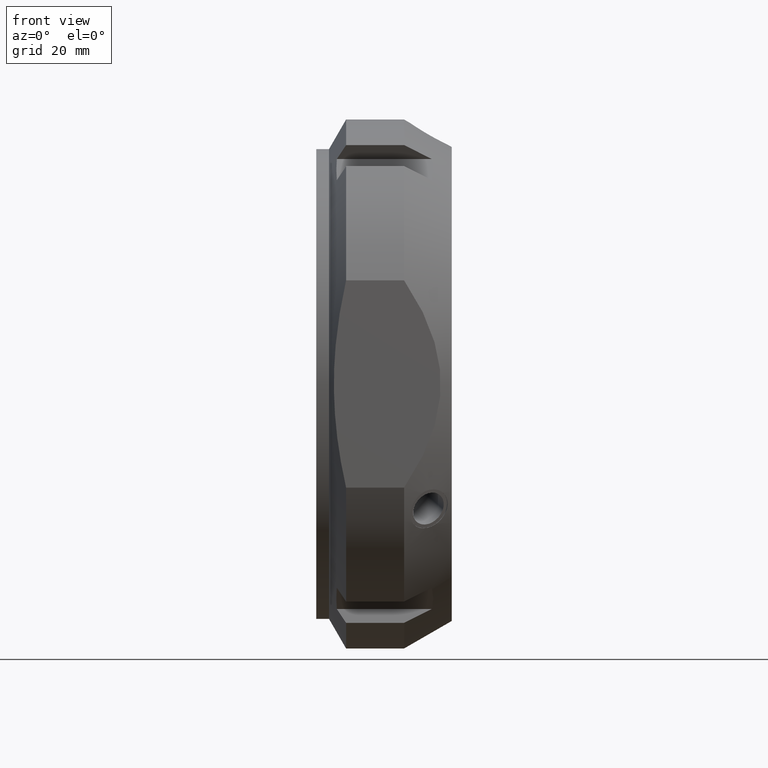
[diagram: clean part render]
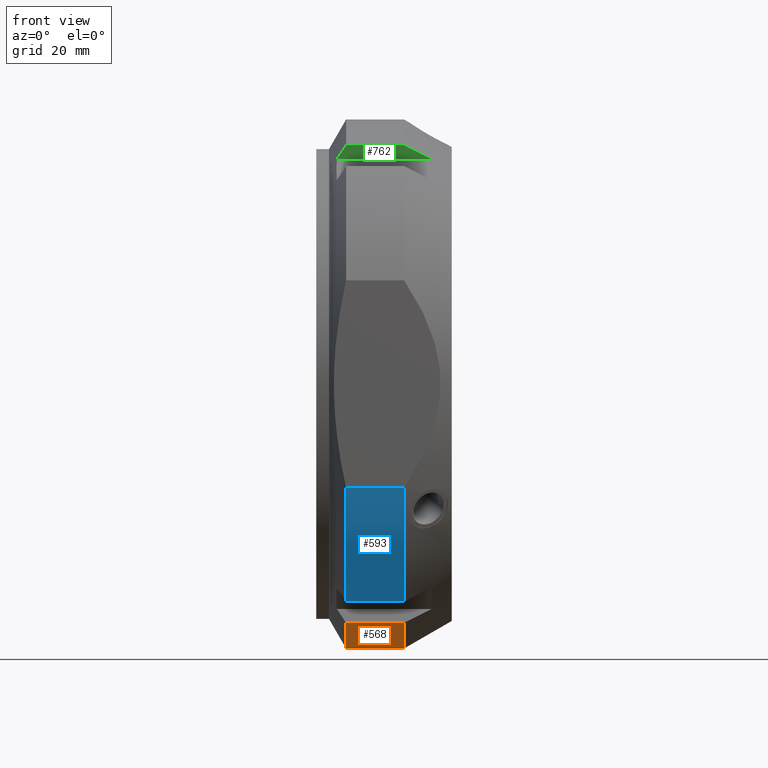
[diagram: same view with three faces highlighted in distinct colors, each labeled with its STEP entity id]
A machine part, front view with three faces highlighted in distinct colors.
Their STEP definitions:

[orange] entity #568 — the highlighted cylindrical surface (partial cylindrical patch) has radius 62.5 mm, axis along (1, 0, 0).
#127=CARTESIAN_POINT('',(7.04145188432735,26.819712467020537,-56.453104637268119));
#128=VERTEX_POINT('',#127);
#143=CARTESIAN_POINT('',(20.741669750802288,26.819712467020537,-56.453104637268119));
#144=VERTEX_POINT('',#143);
#158=CARTESIAN_POINT('',(7.04145188432735,26.819712467020533,-56.453104637268119));
#159=DIRECTION('',(1.0,0.0,0.0));
#160=VECTOR('',#159,13.700217866474938);
#161=LINE('',#158,#160);
#162=EDGE_CURVE('',#128,#144,#161,.T.);
#271=CARTESIAN_POINT('',(7.041451884327347,-26.819712467020601,-56.45310463726809));
#272=VERTEX_POINT('',#271);
#288=CARTESIAN_POINT('',(20.741669750802295,-26.819712467020604,-56.45310463726809));
#289=VERTEX_POINT('',#288);
#290=CARTESIAN_POINT('',(20.741669750802295,-26.819712467020594,-56.45310463726809));
#291=DIRECTION('',(-1.0,0.0,0.0));
#292=VECTOR('',#291,13.700217866474947);
#293=LINE('',#290,#292);
#294=EDGE_CURVE('',#289,#272,#293,.T.);
#375=CARTESIAN_POINT('',(7.041451884327348,0.0,0.0));
#376=DIRECTION('',(1.0,0.0,0.0));
#377=DIRECTION('',(0.0,1.0,0.0));
#378=AXIS2_PLACEMENT_3D('',#375,#376,#377);
#379=CIRCLE('',#378,62.5);
#380=EDGE_CURVE('',#272,#128,#379,.T.);
#551=CARTESIAN_POINT('',(13.891560817564814,0.0,0.0));
#552=DIRECTION('',(1.0,0.0,0.0));
#553=DIRECTION('',(0.0,1.0,0.0));
#554=AXIS2_PLACEMENT_3D('',#551,#552,#553);
#555=CYLINDRICAL_SURFACE('',#554,62.5);
#556=ORIENTED_EDGE('',*,*,#162,.T.);
#557=CARTESIAN_POINT('',(20.741669750802281,0.0,0.0));
#558=DIRECTION('',(1.0,0.0,0.0));
#559=DIRECTION('',(0.0,1.0,0.0));
#560=AXIS2_PLACEMENT_3D('',#557,#558,#559);
#561=CIRCLE('',#560,62.5);
#562=EDGE_CURVE('',#289,#144,#561,.T.);
#563=ORIENTED_EDGE('',*,*,#562,.F.);
#564=ORIENTED_EDGE('',*,*,#294,.T.);
#565=ORIENTED_EDGE('',*,*,#380,.T.);
#566=EDGE_LOOP('',(#556,#563,#564,#565));
#567=FACE_OUTER_BOUND('',#566,.T.);
#568=ADVANCED_FACE('',(#567),#555,.T.);

[blue] entity #593 — the highlighted cylindrical surface (partial cylindrical patch) has radius 62.5 mm, axis along (1, 0, 0).
#219=CARTESIAN_POINT('',(7.041451884327348,-35.47996650486499,-51.453104637268083));
#220=VERTEX_POINT('',#219);
#242=CARTESIAN_POINT('',(20.741669750802274,-35.479966504865004,-51.453104637268083));
#243=VERTEX_POINT('',#242);
#257=CARTESIAN_POINT('',(7.041451884327348,-35.47996650486499,-51.453104637268083));
#258=DIRECTION('',(1.0,0.0,0.0));
#259=VECTOR('',#258,13.700217866474926);
#260=LINE('',#257,#259);
#261=EDGE_CURVE('',#220,#243,#260,.T.);
#385=CARTESIAN_POINT('',(7.041451884327348,-57.500000000000028,-24.49489742783172));
#386=VERTEX_POINT('',#385);
#387=CARTESIAN_POINT('',(7.041451884327348,0.0,0.0));
#388=DIRECTION('',(1.0,0.0,0.0));
#389=DIRECTION('',(0.0,1.0,0.0));
#390=AXIS2_PLACEMENT_3D('',#387,#388,#389);
#391=CIRCLE('',#390,62.5);
#392=EDGE_CURVE('',#386,#220,#391,.T.);
#569=CARTESIAN_POINT('',(13.891560817564814,0.0,0.0));
#570=DIRECTION('',(1.0,0.0,0.0));
#571=DIRECTION('',(0.0,1.0,0.0));
#572=AXIS2_PLACEMENT_3D('',#569,#570,#571);
#573=CYLINDRICAL_SURFACE('',#572,62.5);
#574=ORIENTED_EDGE('',*,*,#261,.T.);
#575=CARTESIAN_POINT('',(20.741669750802281,-57.500000000000028,-24.49489742783172));
#576=VERTEX_POINT('',#575);
#577=CARTESIAN_POINT('',(20.741669750802281,0.0,0.0));
#578=DIRECTION('',(1.0,0.0,0.0));
#579=DIRECTION('',(0.0,1.0,0.0));
#580=AXIS2_PLACEMENT_3D('',#577,#578,#579);
#581=CIRCLE('',#580,62.5);
#582=EDGE_CURVE('',#576,#243,#581,.T.);
#583=ORIENTED_EDGE('',*,*,#582,.F.);
#584=CARTESIAN_POINT('',(20.741669750802281,-57.500000000000028,-24.49489742783172));
#585=DIRECTION('',(-1.0,0.0,0.0));
#586=VECTOR('',#585,13.700217866474933);
#587=LINE('',#584,#586);
#588=EDGE_CURVE('',#576,#386,#587,.T.);
#589=ORIENTED_EDGE('',*,*,#588,.T.);
#590=ORIENTED_EDGE('',*,*,#392,.T.);
#591=EDGE_LOOP('',(#574,#583,#589,#590));
#592=FACE_OUTER_BOUND('',#591,.T.);
#593=ADVANCED_FACE('',(#592),#573,.T.);

[green] entity #762 — the highlighted planar face has unit normal (0, 0.866, 0.5).
#433=CARTESIAN_POINT('',(4.855191768571918,-24.919872981077816,53.162486121389662));
#434=VERTEX_POINT('',#433);
#448=CARTESIAN_POINT('',(7.041451884327348,-26.819712467020594,56.45310463726809));
#449=VERTEX_POINT('',#448);
#450=CARTESIAN_POINT('',(4.855191768571918,-24.919872981077816,53.162486121389662));
#451=CARTESIAN_POINT('',(5.913938098592261,-25.840117148796374,54.756395775247142));
#452=CARTESIAN_POINT('',(7.04145188432735,-26.819712467020604,56.45310463726809));
#460=(BOUNDED_CURVE()B_SPLINE_CURVE(2,(#450,#451,#452),.UNSPECIFIED.,.F.,.U.)B_SPLINE_CURVE_WITH_KNOTS((3,3),(0.695274858708479,1.111675363263337),.UNSPECIFIED.)CURVE()GEOMETRIC_REPRESENTATION_ITEM()RATIONAL_B_SPLINE_CURVE((1.001642168754793,1.001312832273567,1.0))REPRESENTATION_ITEM(''));
#461=EDGE_CURVE('',#434,#449,#460,.T.);
#708=CARTESIAN_POINT('',(27.300450098068602,-24.91987298107782,53.162486121389662));
#709=VERTEX_POINT('',#708);
#723=CARTESIAN_POINT('',(4.855191768571918,-24.91987298107782,53.162486121389662));
#724=DIRECTION('',(1.0,0.0,0.0));
#725=VECTOR('',#724,22.445258329496685);
#726=LINE('',#723,#725);
#727=EDGE_CURVE('',#434,#709,#726,.T.);
#732=CARTESIAN_POINT('',(0.0,-24.91987298107782,53.162486121389662));
#733=DIRECTION('',(0.0,0.866025403784439,0.5));
#734=DIRECTION('',(0.0,-0.5,0.866025403784439));
#735=AXIS2_PLACEMENT_3D('',#732,#733,#734);
#736=PLANE('',#735);
#737=ORIENTED_EDGE('',*,*,#461,.F.);
#738=ORIENTED_EDGE('',*,*,#727,.T.);
#739=CARTESIAN_POINT('',(20.741669750802295,-26.819712467020604,56.45310463726809));
#740=VERTEX_POINT('',#739);
#741=CARTESIAN_POINT('',(20.741669750802281,-26.819712467020601,56.453104637268083));
#742=CARTESIAN_POINT('',(24.124211108791776,-25.840117148569028,54.756395774853353));
#743=CARTESIAN_POINT('',(27.300450098068602,-24.91987298107782,53.162486121389662));
#751=(BOUNDED_CURVE()B_SPLINE_CURVE(2,(#741,#742,#743),.UNSPECIFIED.,.F.,.U.)B_SPLINE_CURVE_WITH_KNOTS((3,3),(0.0,0.719859501258785),.UNSPECIFIED.)CURVE()GEOMETRIC_REPRESENTATION_ITEM()RATIONAL_B_SPLINE_CURVE((1.0,1.001312832306064,1.001642168795835))REPRESENTATION_ITEM(''));
#752=EDGE_CURVE('',#740,#709,#751,.T.);
#753=ORIENTED_EDGE('',*,*,#752,.F.);
#754=CARTESIAN_POINT('',(7.041451884327348,-26.819712467020594,56.45310463726809));
#755=DIRECTION('',(1.0,0.0,0.0));
#756=VECTOR('',#755,13.700217866474947);
#757=LINE('',#754,#756);
#758=EDGE_CURVE('',#449,#740,#757,.T.);
#759=ORIENTED_EDGE('',*,*,#758,.F.);
#760=EDGE_LOOP('',(#737,#738,#753,#759));
#761=FACE_OUTER_BOUND('',#760,.T.);
#762=ADVANCED_FACE('',(#761),#736,.F.);